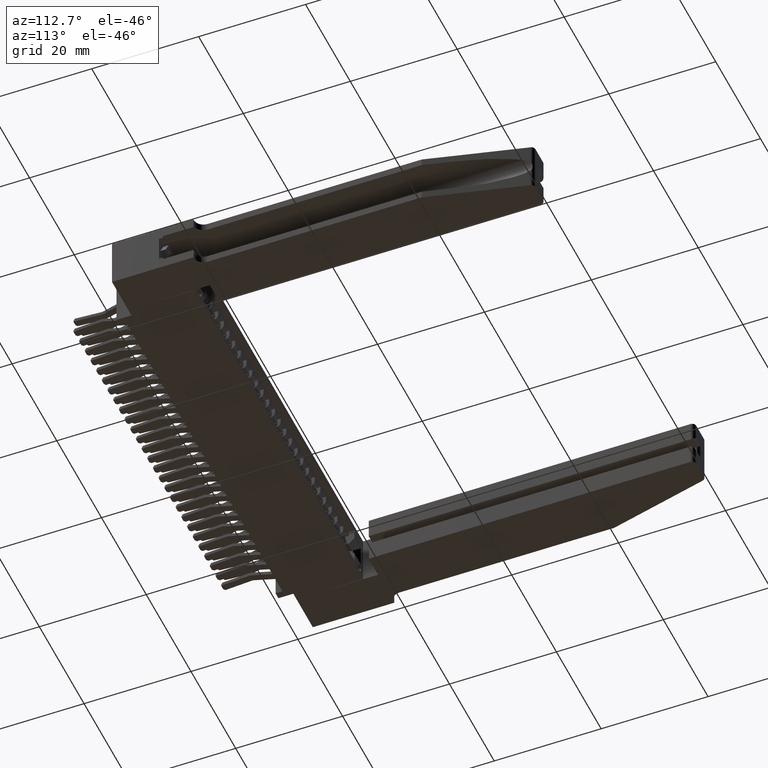
[diagram: clean part render]
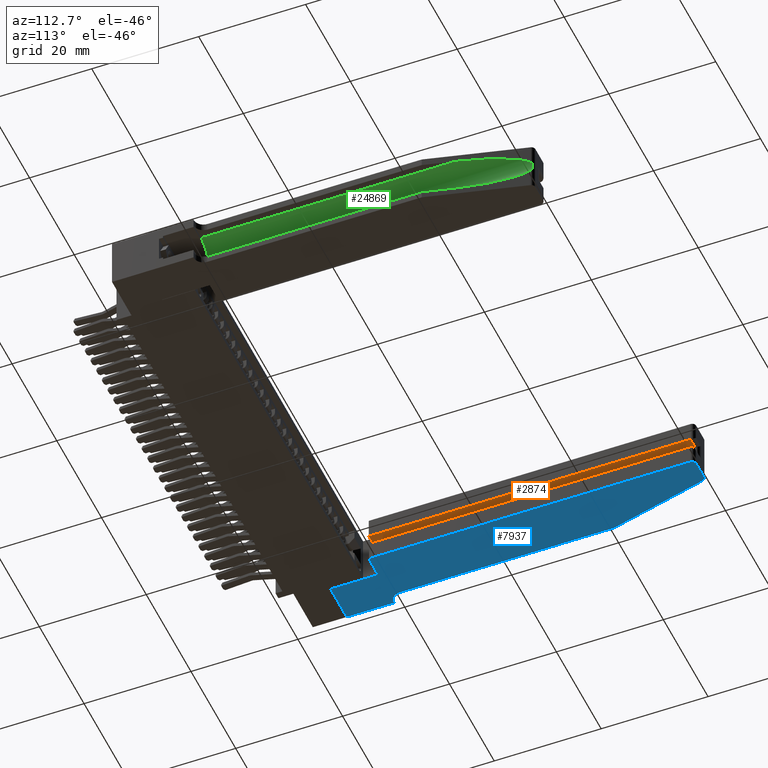
[diagram: same view with three faces highlighted in distinct colors, each labeled with its STEP entity id]
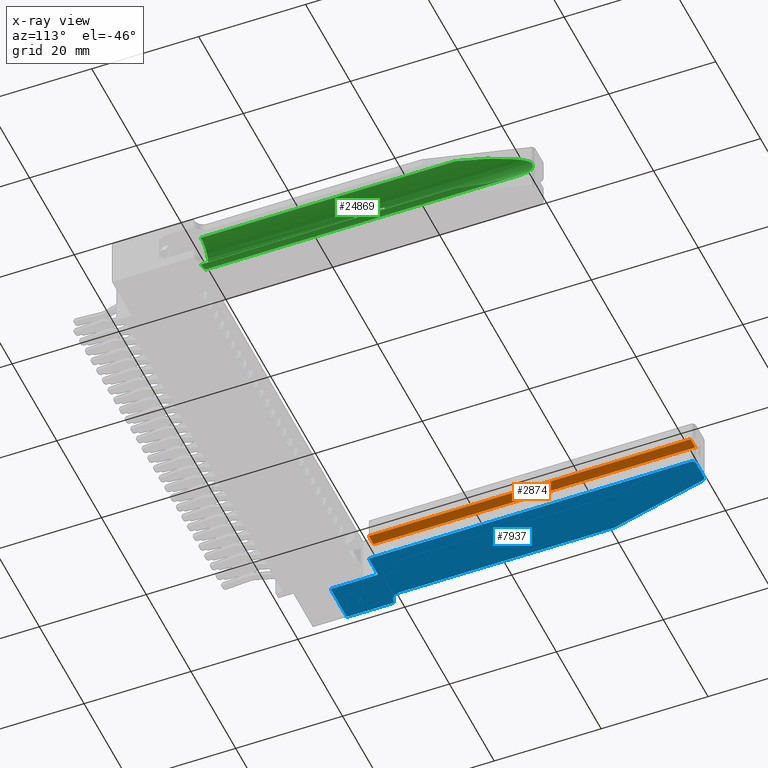
[diagram: x-ray of the same camera — body ghosted, the three highlighted faces saturated]
A machine part, auxiliary view with three faces highlighted in distinct colors.
The next image is the same camera in x-ray (body ghosted, the three faces saturated) — at least one of them is partly hidden behind the body in this view.
Their STEP definitions:

[orange] entity #2874 — the highlighted planar face has unit normal (0, 0, 1).
#2874 = ADVANCED_FACE ( 'NONE', ( #27825 ), #11401, .F. ) ;
#3910 = DIRECTION ( 'NONE',  ( 5.612000012723082900E-032, 1.000000000000000000, 5.916456789157588500E-031 ) ) ;
#6037 = VERTEX_POINT ( 'NONE', #13747 ) ;
#6263 = ORIENTED_EDGE ( 'NONE', *, *, #19585, .T. ) ;
#7759 = EDGE_LOOP ( 'NONE', ( #17178, #6263, #13450, #8389 ) ) ;
#7856 = AXIS2_PLACEMENT_3D ( 'NONE', #11435, #14809, #14745 ) ;
#8389 = ORIENTED_EDGE ( 'NONE', *, *, #15717, .T. ) ;
#9060 = LINE ( 'NONE', #13708, #14793 ) ;
#9679 = CARTESIAN_POINT ( 'NONE',  ( 0.3674999999999998300, 0.3499999999999999800, 0.2205000000000000000 ) ) ;
#10418 = LINE ( 'NONE', #28023, #22631 ) ;
#11401 = PLANE ( 'NONE',  #7856 ) ;
#11435 = CARTESIAN_POINT ( 'NONE',  ( 0.3674999999999998300, 0.2407754606326948900, 0.2204999999999999200 ) ) ;
#12927 = DIRECTION ( 'NONE',  ( 1.000000000000000000, 5.612000012723065300E-032, -4.114228906120879800E-016 ) ) ;
#13120 = VERTEX_POINT ( 'NONE', #23647 ) ;
#13450 = ORIENTED_EDGE ( 'NONE', *, *, #16270, .F. ) ;
#13708 = CARTESIAN_POINT ( 'NONE',  ( 0.4504999999999994600, 0.2407754606326948900, 0.2204999999999999700 ) ) ;
#13747 = CARTESIAN_POINT ( 'NONE',  ( 0.4504999999999994600, 2.719999999999999300, 0.2204999999999999700 ) ) ;
#14225 = EDGE_CURVE ( 'NONE', #17630, #13120, #18990, .T. ) ;
#14745 = DIRECTION ( 'NONE',  ( 1.000000000000000000, 5.612000012723065300E-032, -4.114228906120879800E-016 ) ) ;
#14793 = VECTOR ( 'NONE', #24498, 39.37007874015748100 ) ;
#14809 = DIRECTION ( 'NONE',  ( 4.114228906120879800E-016, 5.916456789157588500E-031, 1.000000000000000000 ) ) ;
#15717 = EDGE_CURVE ( 'NONE', #16813, #17630, #22632, .T. ) ;
#16270 = EDGE_CURVE ( 'NONE', #16813, #6037, #9060, .T. ) ;
#16813 = VERTEX_POINT ( 'NONE', #17674 ) ;
#16863 = VECTOR ( 'NONE', #24340, 39.37007874015748100 ) ;
#16978 = CARTESIAN_POINT ( 'NONE',  ( 0.3674999999999998300, 0.2407754606326948900, 0.2204999999999999200 ) ) ;
#17178 = ORIENTED_EDGE ( 'NONE', *, *, #14225, .T. ) ;
#17630 = VERTEX_POINT ( 'NONE', #9679 ) ;
#17674 = CARTESIAN_POINT ( 'NONE',  ( 0.4504999999999994600, 0.3499999999999999800, 0.2204999999999999700 ) ) ;
#18990 = LINE ( 'NONE', #16978, #19282 ) ;
#19282 = VECTOR ( 'NONE', #3910, 39.37007874015748100 ) ;
#19585 = EDGE_CURVE ( 'NONE', #13120, #6037, #10418, .T. ) ;
#20018 = CARTESIAN_POINT ( 'NONE',  ( 0.3674999999999998300, 0.3499999999999999800, 0.2205000000000000000 ) ) ;
#22631 = VECTOR ( 'NONE', #12927, 39.37007874015748100 ) ;
#22632 = LINE ( 'NONE', #20018, #16863 ) ;
#23647 = CARTESIAN_POINT ( 'NONE',  ( 0.3674999999999998300, 2.719999999999999300, 0.2205000000000000000 ) ) ;
#24340 = DIRECTION ( 'NONE',  ( -1.000000000000000000, -5.612000012723065300E-032, 4.114228906120879800E-016 ) ) ;
#24498 = DIRECTION ( 'NONE',  ( 5.612000012723082900E-032, 1.000000000000000000, 5.916456789157588500E-031 ) ) ;
#27825 = FACE_OUTER_BOUND ( 'NONE', #7759, .T. ) ;
#28023 = CARTESIAN_POINT ( 'NONE',  ( 0.3674999999999998300, 2.719999999999999300, 0.2205000000000000000 ) ) ;

[blue] entity #7937 — the highlighted planar face has unit normal (-0, 0, 1).
#532 = ORIENTED_EDGE ( 'NONE', *, *, #10809, .F. ) ;
#771 = LINE ( 'NONE', #16269, #17535 ) ;
#1700 = VECTOR ( 'NONE', #20472, 39.37007874015748100 ) ;
#1913 = CARTESIAN_POINT ( 'NONE',  ( 0.07550000000000033100, 0.3499999999999999800, 0.0000000000000000000 ) ) ;
#1915 = ORIENTED_EDGE ( 'NONE', *, *, #7622, .F. ) ;
#1965 = CARTESIAN_POINT ( 'NONE',  ( 0.0000000000000000000, 0.3499999999999999800, 0.0000000000000000000 ) ) ;
#2440 = LINE ( 'NONE', #15037, #24242 ) ;
#3060 = VECTOR ( 'NONE', #13003, 39.37007874015748100 ) ;
#3085 = LINE ( 'NONE', #12514, #14041 ) ;
#3381 = CARTESIAN_POINT ( 'NONE',  ( 0.4505000000000000100, 2.719999999999999300, 0.0000000000000000000 ) ) ;
#3650 = ORIENTED_EDGE ( 'NONE', *, *, #17206, .F. ) ;
#3780 = CARTESIAN_POINT ( 'NONE',  ( 0.005500000000000255600, 0.3499999999999999800, 0.0000000000000000000 ) ) ;
#4353 = VERTEX_POINT ( 'NONE', #11596 ) ;
#4933 = CARTESIAN_POINT ( 'NONE',  ( 0.4505000000000000100, 0.3499999999999999800, 0.0000000000000000000 ) ) ;
#4961 = DIRECTION ( 'NONE',  ( -5.612000012723082900E-032, -1.000000000000000000, -5.916456789157588500E-031 ) ) ;
#4964 = CARTESIAN_POINT ( 'NONE',  ( 0.005500000000000255600, 0.4199999999999999800, 0.0000000000000000000 ) ) ;
#5191 = VERTEX_POINT ( 'NONE', #25527 ) ;
#5216 = CARTESIAN_POINT ( 'NONE',  ( 0.0000000000000000000, 0.0000000000000000000, 0.0000000000000000000 ) ) ;
#5698 = EDGE_CURVE ( 'NONE', #17451, #23952, #771, .T. ) ;
#5926 = DIRECTION ( 'NONE',  ( -1.000000000000000000, -5.612000012723089400E-032, 0.0000000000000000000 ) ) ;
#6003 = VERTEX_POINT ( 'NONE', #26130 ) ;
#6233 = CARTESIAN_POINT ( 'NONE',  ( 0.07550000000000033100, 0.4199999999999999800, 0.0000000000000000000 ) ) ;
#6927 = LINE ( 'NONE', #1913, #12062 ) ;
#7175 = DIRECTION ( 'NONE',  ( 1.000000000000000000, 5.612000012723089400E-032, 0.0000000000000000000 ) ) ;
#7190 = DIRECTION ( 'NONE',  ( -0.0000000000000000000, -5.916456789157588500E-031, -1.000000000000000000 ) ) ;
#7215 = DIRECTION ( 'NONE',  ( -1.000000000000000000, 0.0000000000000000000, 0.0000000000000000000 ) ) ;
#7440 = AXIS2_PLACEMENT_3D ( 'NONE', #20210, #7190, #22366 ) ;
#7622 = EDGE_CURVE ( 'NONE', #24142, #14836, #18804, .T. ) ;
#7653 = CARTESIAN_POINT ( 'NONE',  ( 0.4205000000000000400, 2.750000000000000000, 0.0000000000000000000 ) ) ;
#7807 = EDGE_CURVE ( 'NONE', #21819, #9888, #3085, .T. ) ;
#7837 = ORIENTED_EDGE ( 'NONE', *, *, #20632, .F. ) ;
#7937 = ADVANCED_FACE ( 'NONE', ( #27832 ), #27979, .F. ) ;
#8160 = ORIENTED_EDGE ( 'NONE', *, *, #22643, .F. ) ;
#8516 = DIRECTION ( 'NONE',  ( 1.241749088029210900E-016, -1.000000000000000000, -5.916456789157588500E-031 ) ) ;
#8657 = DIRECTION ( 'NONE',  ( -3.320315557602799600E-062, 5.916456789157588500E-031, 1.000000000000000000 ) ) ;
#8778 = LINE ( 'NONE', #4933, #25343 ) ;
#8847 = CIRCLE ( 'NONE', #7440, 0.03000000000000002300 ) ;
#8945 = LINE ( 'NONE', #21656, #3060 ) ;
#9138 = CIRCLE ( 'NONE', #15645, 0.03000000000000002300 ) ;
#9145 = AXIS2_PLACEMENT_3D ( 'NONE', #1965, #8657, #23773 ) ;
#9677 = AXIS2_PLACEMENT_3D ( 'NONE', #4964, #20241, #7215 ) ;
#9888 = VERTEX_POINT ( 'NONE', #19467 ) ;
#10809 = EDGE_CURVE ( 'NONE', #6003, #21819, #24898, .T. ) ;
#10867 = ORIENTED_EDGE ( 'NONE', *, *, #19160, .F. ) ;
#11098 = CARTESIAN_POINT ( 'NONE',  ( 0.4505000000000000100, 0.3499999999999999800, 0.0000000000000000000 ) ) ;
#11422 = VERTEX_POINT ( 'NONE', #7653 ) ;
#11596 = CARTESIAN_POINT ( 'NONE',  ( 0.0000000000000000000, 0.3499999999999999800, 0.0000000000000000000 ) ) ;
#12062 = VECTOR ( 'NONE', #23727, 39.37007874015748100 ) ;
#12514 = CARTESIAN_POINT ( 'NONE',  ( 0.2864999999999998100, 0.3499999999999999800, 0.0000000000000000000 ) ) ;
#12589 = CARTESIAN_POINT ( 'NONE',  ( 0.4205000000000000400, 2.719999999999999300, 0.0000000000000000000 ) ) ;
#12631 = EDGE_LOOP ( 'NONE', ( #8160, #25407, #3650, #15278, #21040, #10867, #22395, #532, #17998, #23730, #1915, #7837 ) ) ;
#13003 = DIRECTION ( 'NONE',  ( -0.2394884713086027600, -0.9708992080078490100, -5.916456789157588500E-031 ) ) ;
#14041 = VECTOR ( 'NONE', #23404, 39.37007874015748100 ) ;
#14783 = DIRECTION ( 'NONE',  ( 1.000000000000000000, 0.0000000000000000000, 0.0000000000000000000 ) ) ;
#14836 = VERTEX_POINT ( 'NONE', #3780 ) ;
#15037 = CARTESIAN_POINT ( 'NONE',  ( 0.07550000000000033100, 1.999999999999999300, 0.0000000000000000000 ) ) ;
#15278 = ORIENTED_EDGE ( 'NONE', *, *, #18870, .T. ) ;
#15645 = AXIS2_PLACEMENT_3D ( 'NONE', #12589, #27676, #14783 ) ;
#16269 = CARTESIAN_POINT ( 'NONE',  ( 0.4505000000000000100, 0.3499999999999999800, 0.0000000000000000000 ) ) ;
#17206 = EDGE_CURVE ( 'NONE', #11422, #5191, #25565, .T. ) ;
#17257 = LINE ( 'NONE', #26603, #22354 ) ;
#17451 = VERTEX_POINT ( 'NONE', #11098 ) ;
#17535 = VECTOR ( 'NONE', #20716, 39.37007874015748100 ) ;
#17998 = ORIENTED_EDGE ( 'NONE', *, *, #18522, .F. ) ;
#18472 = VERTEX_POINT ( 'NONE', #22196 ) ;
#18522 = EDGE_CURVE ( 'NONE', #4353, #6003, #17257, .T. ) ;
#18804 = CIRCLE ( 'NONE', #9677, 0.07000000000000000700 ) ;
#18870 = EDGE_CURVE ( 'NONE', #11422, #23952, #9138, .T. ) ;
#18974 = CARTESIAN_POINT ( 'NONE',  ( 0.2605000000000001200, 2.750000000000000000, 0.0000000000000000000 ) ) ;
#19159 = VECTOR ( 'NONE', #5926, 39.37007874015748100 ) ;
#19160 = EDGE_CURVE ( 'NONE', #9888, #17451, #8778, .T. ) ;
#19467 = CARTESIAN_POINT ( 'NONE',  ( 0.2864999999999998100, 0.3499999999999999800, 0.0000000000000000000 ) ) ;
#20210 = CARTESIAN_POINT ( 'NONE',  ( 0.2839991909279190300, 2.719999999999999300, 0.0000000000000000000 ) ) ;
#20241 = DIRECTION ( 'NONE',  ( 0.0000000000000000000, -5.916456789157588500E-031, -1.000000000000000000 ) ) ;
#20472 = DIRECTION ( 'NONE',  ( 1.000000000000000000, 8.258562440595775800E-032, 0.0000000000000000000 ) ) ;
#20632 = EDGE_CURVE ( 'NONE', #18472, #24142, #2440, .T. ) ;
#20662 = EDGE_CURVE ( 'NONE', #14836, #4353, #6927, .T. ) ;
#20716 = DIRECTION ( 'NONE',  ( 5.612000012723082900E-032, 1.000000000000000000, 5.916456789157588500E-031 ) ) ;
#21040 = ORIENTED_EDGE ( 'NONE', *, *, #5698, .F. ) ;
#21656 = CARTESIAN_POINT ( 'NONE',  ( 0.07550000000000033100, 1.999999999999999300, 0.0000000000000000000 ) ) ;
#21819 = VERTEX_POINT ( 'NONE', #23114 ) ;
#22196 = CARTESIAN_POINT ( 'NONE',  ( 0.07550000000000033100, 1.999999999999999300, 0.0000000000000000000 ) ) ;
#22354 = VECTOR ( 'NONE', #4961, 39.37007874015748100 ) ;
#22366 = DIRECTION ( 'NONE',  ( 1.000000000000000000, 0.0000000000000000000, -2.101947696487224100E-045 ) ) ;
#22395 = ORIENTED_EDGE ( 'NONE', *, *, #7807, .F. ) ;
#22643 = EDGE_CURVE ( 'NONE', #25490, #18472, #8945, .T. ) ;
#23114 = CARTESIAN_POINT ( 'NONE',  ( 0.2864999999999998100, 0.0000000000000000000, 0.0000000000000000000 ) ) ;
#23404 = DIRECTION ( 'NONE',  ( 5.612000012723082900E-032, 1.000000000000000000, 5.916456789157588500E-031 ) ) ;
#23727 = DIRECTION ( 'NONE',  ( -1.000000000000000000, -5.612000012723089400E-032, 0.0000000000000000000 ) ) ;
#23730 = ORIENTED_EDGE ( 'NONE', *, *, #20662, .F. ) ;
#23773 = DIRECTION ( 'NONE',  ( 1.000000000000000000, 5.612000012723089400E-032, 0.0000000000000000000 ) ) ;
#23952 = VERTEX_POINT ( 'NONE', #3381 ) ;
#24142 = VERTEX_POINT ( 'NONE', #6233 ) ;
#24242 = VECTOR ( 'NONE', #8516, 39.37007874015748100 ) ;
#24898 = LINE ( 'NONE', #5216, #1700 ) ;
#25343 = VECTOR ( 'NONE', #7175, 39.37007874015748100 ) ;
#25407 = ORIENTED_EDGE ( 'NONE', *, *, #26616, .T. ) ;
#25490 = VERTEX_POINT ( 'NONE', #26823 ) ;
#25527 = CARTESIAN_POINT ( 'NONE',  ( 0.2839991909279190300, 2.750000000000000000, 0.0000000000000000000 ) ) ;
#25565 = LINE ( 'NONE', #18974, #19159 ) ;
#26130 = CARTESIAN_POINT ( 'NONE',  ( 0.0000000000000000000, 0.0000000000000000000, 0.0000000000000000000 ) ) ;
#26603 = CARTESIAN_POINT ( 'NONE',  ( 0.0000000000000000000, 0.0000000000000000000, 0.0000000000000000000 ) ) ;
#26616 = EDGE_CURVE ( 'NONE', #25490, #5191, #8847, .T. ) ;
#26823 = CARTESIAN_POINT ( 'NONE',  ( 0.2548722146876835600, 2.727184654139257700, 0.0000000000000000000 ) ) ;
#27676 = DIRECTION ( 'NONE',  ( -0.0000000000000000000, -5.916456789157588500E-031, -1.000000000000000000 ) ) ;
#27832 = FACE_OUTER_BOUND ( 'NONE', #12631, .T. ) ;
#27979 = PLANE ( 'NONE',  #9145 ) ;

[green] entity #24869 — the highlighted cylindrical surface (edge-blend (fillet) strip) has radius 3.3083 mm, axis along (0, -1, 0).
#18 = B_SPLINE_CURVE_WITH_KNOTS ( 'NONE', 3,
 ( #1997, #12912, #21650, #8686, #23803, #10849, #25966, #12998 ),
 .UNSPECIFIED., .F., .F.,
 ( 4, 2, 2, 4 ),
 ( 0.0000000000000000000, 0.0001332753836058733600, 0.0002665507672117467200, 0.0005331015344234934300 ),
 .UNSPECIFIED. ) ;
#166 = CARTESIAN_POINT ( 'NONE',  ( 0.2572417074261726900, 1.516056269377321000, 0.2150266897725741900 ) ) ;
#179 = AXIS2_PLACEMENT_3D ( 'NONE', #22921, #9965, #25094 ) ;
#183 = CARTESIAN_POINT ( 'NONE',  ( 0.1304999999999996200, 3.118579452085978000, 0.1850000000000000000 ) ) ;
#188 = CARTESIAN_POINT ( 'NONE',  ( 0.2577610061578158300, 1.438997083721038800, 0.2127903378218702600 ) ) ;
#205 = DIRECTION ( 'NONE',  ( 5.612000012723082900E-032, 1.000000000000000000, 5.916456789157588500E-031 ) ) ;
#208 = DIRECTION ( 'NONE',  ( -5.612000012723090500E-032, -1.000000000000000000, -5.916456789157590300E-031 ) ) ;
#243 = EDGE_CURVE ( 'NONE', #18528, #7471, #20753, .T. ) ;
#309 = ORIENTED_EDGE ( 'NONE', *, *, #21508, .F. ) ;
#321 = ORIENTED_EDGE ( 'NONE', *, *, #17495, .F. ) ;
#349 = ORIENTED_EDGE ( 'NONE', *, *, #7784, .F. ) ;
#435 = EDGE_CURVE ( 'NONE', #18528, #15126, #11061, .T. ) ;
#514 = CARTESIAN_POINT ( 'NONE',  ( 0.2572650028688677800, 1.566237742105492300, 0.1550717742952604000 ) ) ;
#531 = CARTESIAN_POINT ( 'NONE',  ( 0.2604082237067015200, 1.432693304204303100, 0.1755474817377458100 ) ) ;
#613 = CARTESIAN_POINT ( 'NONE',  ( 0.2607495255138105900, 1.542438480915782500, 0.1853515727904365700 ) ) ;
#780 =( BOUNDED_CURVE ( )  B_SPLINE_CURVE ( 3, ( #2673, #24468, #531, #15877 ),
 .UNSPECIFIED., .F., .F. ) 
 B_SPLINE_CURVE_WITH_KNOTS ( ( 4, 4 ),
 ( 1.487939716100531900, 1.503116450270790500 ),
 .UNSPECIFIED. ) 
 CURVE ( )  GEOMETRIC_REPRESENTATION_ITEM ( )  RATIONAL_B_SPLINE_CURVE ( ( 1.000000000000000000, 0.9999808056537669000, 0.9999808056537669000, 1.000000000000000000 ) ) 
 REPRESENTATION_ITEM ( '' )  );
#849 = CARTESIAN_POINT ( 'NONE',  ( 0.1304999999999996200, 1.647053865531167300, 0.1850000000000000000 ) ) ;
#863 = CARTESIAN_POINT ( 'NONE',  ( 0.2606336593418024400, 1.470576365621471600, 0.1911457352603607700 ) ) ;
#904 = EDGE_CURVE ( 'NONE', #1264, #24598, #11014, .T. ) ;
#921 = CARTESIAN_POINT ( 'NONE',  ( 0.2578854245038477700, 2.734861984818300200, 0.1576467210914298500 ) ) ;
#932 = CIRCLE ( 'NONE', #12553, 0.1302500000000000000 ) ;
#946 = B_SPLINE_CURVE_WITH_KNOTS ( 'NONE', 3,
 ( #15005, #17173, #4103, #19368, #6305, #21536, #8576, #23693, #10733, #25852, #12896, #27993, #15104, #1978 ),
 .UNSPECIFIED., .F., .F.,
 ( 4, 2, 2, 2, 2, 2, 4 ),
 ( 7.152448122690996000E-018, 0.0001086335749075641300, 0.0002172671498151211000, 0.0003259007247226780900, 0.0004345342996302350500, 0.0006518014494453510800, 0.0008690685992604671700 ),
 .UNSPECIFIED. ) ;
#984 = FACE_BOUND ( 'NONE', #20425, .T. ) ;
#1248 = CARTESIAN_POINT ( 'NONE',  ( 0.2593770251907650500, 1.474820832027519100, 0.2040910098119249900 ) ) ;
#1264 = VERTEX_POINT ( 'NONE', #28052 ) ;
#1281 = DIRECTION ( 'NONE',  ( -5.612000012723082900E-032, -1.000000000000000000, -5.916456789157588500E-031 ) ) ;
#1291 = CARTESIAN_POINT ( 'NONE',  ( 0.2548722146876841200, 2.727184654139257700, 0.1463138950825917900 ) ) ;
#1386 = ORIENTED_EDGE ( 'NONE', *, *, #3737, .F. ) ;
#1424 = AXIS2_PLACEMENT_3D ( 'NONE', #3437, #18706, #5651 ) ;
#1556 = EDGE_CURVE ( 'NONE', #12541, #13068, #2392, .T. ) ;
#1634 = CARTESIAN_POINT ( 'NONE',  ( 0.2572543420685634000, 1.539878384761936400, 0.1550266907605160300 ) ) ;
#1729 = CARTESIAN_POINT ( 'NONE',  ( 0.1305000000000001400, 3.118579452085978000, 0.3152500000000000900 ) ) ;
#1788 = EDGE_CURVE ( 'NONE', #15168, #12188, #9457, .T. ) ;
#1812 = B_SPLINE_CURVE_WITH_KNOTS ( 'NONE', 3,
 ( #6315, #15115, #17275, #4209, #19471, #6414, #21641, #8679 ),
 .UNSPECIFIED., .F., .F.,
 ( 4, 2, 2, 4 ),
 ( 0.0000000000000000000, 0.0003467307017607498900, 0.0005200960526411203600, 0.0006934614035214908900 ),
 .UNSPECIFIED. ) ;
#1870 = CARTESIAN_POINT ( 'NONE',  ( 0.2604527177282015000, 1.435515403992705800, 0.1762049073311092500 ) ) ;
#1872 = CIRCLE ( 'NONE', #19082, 0.1302500000000000000 ) ;
#1942 = CARTESIAN_POINT ( 'NONE',  ( 0.2583535020606468900, 1.551825500146551700, 0.2098705550969030600 ) ) ;
#1969 = CARTESIAN_POINT ( 'NONE',  ( 0.2585535126471000300, 1.452342327069629000, 0.1611806717403911100 ) ) ;
#1978 = CARTESIAN_POINT ( 'NONE',  ( 0.2607490100387212500, 1.470900019377321200, 0.1855078227377954000 ) ) ;
#1997 = CARTESIAN_POINT ( 'NONE',  ( 0.2585435214692407000, 1.452125980915782500, 0.2088729786527802300 ) ) ;
#2053 = ORIENTED_EDGE ( 'NONE', *, *, #904, .F. ) ;
#2077 = CARTESIAN_POINT ( 'NONE',  ( 0.2607491456314732800, 1.479361557838859700, 0.1854717650593617800 ) ) ;
#2088 = CARTESIAN_POINT ( 'NONE',  ( 0.2572417074261726900, 1.516056269377321000, 0.2150266897725741900 ) ) ;
#2110 = CARTESIAN_POINT ( 'NONE',  ( 0.2570570028013188200, 1.451717327069628600, 0.2157959013822774700 ) ) ;
#2120 = EDGE_CURVE ( 'NONE', #11370, #12541, #12359, .T. ) ;
#2176 = CARTESIAN_POINT ( 'NONE',  ( 0.2578800906641983700, 1.555179994274563700, 0.2121939212779543600 ) ) ;
#2187 =( BOUNDED_CURVE ( )  B_SPLINE_CURVE ( 3, ( #1291, #14429, #18806, #5753 ),
 .UNSPECIFIED., .F., .F. ) 
 B_SPLINE_CURVE_WITH_KNOTS ( ( 4, 4 ),
 ( 3.443156915742574300, 4.712388980384689700 ),
 .UNSPECIFIED. ) 
 CURVE ( )  GEOMETRIC_REPRESENTATION_ITEM ( )  RATIONAL_B_SPLINE_CURVE ( ( 1.000000000000000000, 0.8701995987432802300, 0.8701995987432802300, 1.000000000000000000 ) ) 
 REPRESENTATION_ITEM ( '' )  );
#2392 = CIRCLE ( 'NONE', #5586, 0.1302500000000000000 ) ;
#2428 = CARTESIAN_POINT ( 'NONE',  ( 0.2579652968106256300, 1.554461636160303200, 0.2117932007313176900 ) ) ;
#2446 = CARTESIAN_POINT ( 'NONE',  ( 0.2571366226381652800, 1.446413440213098800, 0.2154763567918473200 ) ) ;
#2482 = CARTESIAN_POINT ( 'NONE',  ( 0.2572543420685634000, 1.530900019377321000, 0.1550266907605160100 ) ) ;
#2548 = B_SPLINE_CURVE_WITH_KNOTS ( 'NONE', 3,
 ( #20414, #3043, #20512, #7514, #22667, #9710, #24837, #11879, #26971, #14058, #921, #16248, #3153, #18422 ),
 .UNSPECIFIED., .F., .F.,
 ( 4, 2, 2, 2, 2, 2, 4 ),
 ( 1.939479807224432100E-018, 0.0002671599166263931600, 0.0005343198332527843800, 0.001068639666505576300, 0.001602959499758368300, 0.001870119416384770600, 0.002137279333011171300 ),
 .UNSPECIFIED. ) ;
#2621 = VERTEX_POINT ( 'NONE', #18509 ) ;
#2673 = CARTESIAN_POINT ( 'NONE',  ( 0.2603042761395829000, 1.427053865531167300, 0.1742337380730787600 ) ) ;
#2735 = EDGE_CURVE ( 'NONE', #12188, #22119, #14033, .T. ) ;
#3029 = VERTEX_POINT ( 'NONE', #2110 ) ;
#3043 = CARTESIAN_POINT ( 'NONE',  ( 0.2555509601150309800, 2.729936324790665400, 0.2215040017517220000 ) ) ;
#3079 = DIRECTION ( 'NONE',  ( 0.0000000000000000000, 0.0000000000000000000, 1.000000000000000000 ) ) ;
#3092 = CARTESIAN_POINT ( 'NONE',  ( 0.2599784890066399500, 1.468395021612113500, 0.1993480491476894400 ) ) ;
#3153 = CARTESIAN_POINT ( 'NONE',  ( 0.2555500627181149200, 2.729932686695059300, 0.1484931132009920400 ) ) ;
#3210 = VECTOR ( 'NONE', #20304, 39.37007874015748100 ) ;
#3212 = DIRECTION ( 'NONE',  ( 0.0000000000000000000, 0.0000000000000000000, -1.000000000000000000 ) ) ;
#3437 = CARTESIAN_POINT ( 'NONE',  ( 0.1304999999999996200, 1.604746173223475100, 0.1850000000000000000 ) ) ;
#3491 = CARTESIAN_POINT ( 'NONE',  ( 0.2605394411282578300, 1.478893402734939000, 0.1932674933633179700 ) ) ;
#3493 = CARTESIAN_POINT ( 'NONE',  ( 0.2619407708686990500, 1.490559323904030700, 0.1748451630708727800 ) ) ;
#3518 = VERTEX_POINT ( 'NONE', #11256 ) ;
#3719 = CARTESIAN_POINT ( 'NONE',  ( 0.2573363970934428600, 1.563177313346149500, 0.2146241602810002600 ) ) ;
#3737 = EDGE_CURVE ( 'NONE', #21240, #6318, #932, .T. ) ;
#3746 = CARTESIAN_POINT ( 'NONE',  ( 0.2607491456314732800, 1.479361557838859700, 0.1854717650593617800 ) ) ;
#3815 = LINE ( 'NONE', #17312, #14755 ) ;
#3826 = VECTOR ( 'NONE', #27734, 39.37007874015748100 ) ;
#3940 = VECTOR ( 'NONE', #14772, 39.37007874015748100 ) ;
#4005 = AXIS2_PLACEMENT_3D ( 'NONE', #13126, #16280, #15340 ) ;
#4103 = CARTESIAN_POINT ( 'NONE',  ( 0.2585803337939818800, 1.455224327025084200, 0.1613228014347897500 ) ) ;
#4209 = CARTESIAN_POINT ( 'NONE',  ( 0.2598003144887048300, 1.545165969324254800, 0.2008439497357294400 ) ) ;
#4212 = CARTESIAN_POINT ( 'NONE',  ( 0.2548722146876835600, 2.727184654139257700, 0.2236861049174081500 ) ) ;
#4296 = CARTESIAN_POINT ( 'NONE',  ( 0.2572543420685634000, 1.539878384761936400, 0.1550266907605160300 ) ) ;
#4301 = VERTEX_POINT ( 'NONE', #13569 ) ;
#4506 = CARTESIAN_POINT ( 'NONE',  ( 0.2572417074261726900, 1.506513000146551900, 0.2150266897725741900 ) ) ;
#4645 = CARTESIAN_POINT ( 'NONE',  ( 0.2570570028013188200, 1.451717327069628600, 0.2157959013822774700 ) ) ;
#4651 = B_SPLINE_CURVE_WITH_KNOTS ( 'NONE', 3,
 ( #14519, #12428, #16800, #3719, #18982, #5934, #21160, #8189, #23316, #10352 ),
 .UNSPECIFIED., .F., .F.,
 ( 4, 3, 3, 4 ),
 ( 0.0000000000000000000, 6.777949217902839800E-005, 0.0001354456447953192300, 0.0002705498935481809000 ),
 .UNSPECIFIED. ) ;
#4680 = CARTESIAN_POINT ( 'NONE',  ( 0.2586913724347485500, 1.528652825417774900, 0.1611037587660234800 ) ) ;
#4689 = CARTESIAN_POINT ( 'NONE',  ( 0.2596884111614961000, 1.496196006525611700, 0.1672683127315806000 ) ) ;
#4694 = ORIENTED_EDGE ( 'NONE', *, *, #20170, .F. ) ;
#4740 = CARTESIAN_POINT ( 'NONE',  ( 0.2575765261260035700, 1.440297755577238000, 0.1564088741833528600 ) ) ;
#4757 = CARTESIAN_POINT ( 'NONE',  ( 0.2572543420685634000, 1.482690884761936400, 0.1550266907605160100 ) ) ;
#4795 = CARTESIAN_POINT ( 'NONE',  ( 0.2619364824541359200, 1.498644958889686900, 0.1952101929315093700 ) ) ;
#4849 = ORIENTED_EDGE ( 'NONE', *, *, #19357, .F. ) ;
#4883 = ORIENTED_EDGE ( 'NONE', *, *, #24247, .F. ) ;
#4955 = CARTESIAN_POINT ( 'NONE',  ( 0.2573502802942921300, 1.562313348136574700, 0.1554084273221811900 ) ) ;
#5213 = VECTOR ( 'NONE', #25195, 39.37007874015748100 ) ;
#5297 = EDGE_CURVE ( 'NONE', #2621, #3518, #7340, .T. ) ;
#5298 = CARTESIAN_POINT ( 'NONE',  ( 0.2590660260575156600, 1.462989393950458800, 0.2059146511071821000 ) ) ;
#5396 = VECTOR ( 'NONE', #1281, 39.37007874015748100 ) ;
#5503 = CARTESIAN_POINT ( 'NONE',  ( 0.2586942127353972800, 1.638592327069629200, 0.1619499171118249900 ) ) ;
#5570 = CARTESIAN_POINT ( 'NONE',  ( 0.2572417074261726900, 1.506513000146551900, 0.2150266897725741900 ) ) ;
#5586 = AXIS2_PLACEMENT_3D ( 'NONE', #21983, #208, #3212 ) ;
#5603 = CARTESIAN_POINT ( 'NONE',  ( 0.2580590614083185200, 1.553781599999012300, 0.2113391031098014200 ) ) ;
#5651 = DIRECTION ( 'NONE',  ( 0.0000000000000000000, 0.0000000000000000000, -1.000000000000000000 ) ) ;
#5705 = CARTESIAN_POINT ( 'NONE',  ( 0.2607491456314732800, 1.479361557838859700, 0.1854717650593617800 ) ) ;
#5753 = CARTESIAN_POINT ( 'NONE',  ( 0.1305000000000001400, 2.222972972972972400, 0.05475000000000000700 ) ) ;
#5780 = CARTESIAN_POINT ( 'NONE',  ( 0.2604527177282015000, 1.435515403992705800, 0.1762049073311092500 ) ) ;
#5795 = ORIENTED_EDGE ( 'NONE', *, *, #6780, .F. ) ;
#5893 = CARTESIAN_POINT ( 'NONE',  ( 0.2572543420685634000, 1.591669250146551700, 0.1550266907605159000 ) ) ;
#5910 = B_SPLINE_CURVE_WITH_KNOTS ( 'NONE', 3,
 ( #21986, #6781, #11199, #26305, #13355, #188, #15558, #2446, #17737, #4645 ),
 .UNSPECIFIED., .F., .F.,
 ( 4, 2, 2, 2, 4 ),
 ( 0.0000000000000000000, 0.0001977663270666498200, 0.0003955326541332996400, 0.0005932989811999494400, 0.0007910653082665992900 ),
 .UNSPECIFIED. ) ;
#5934 = CARTESIAN_POINT ( 'NONE',  ( 0.2572929425920785200, 1.564945494846582900, 0.2148096636430886800 ) ) ;
#6203 = EDGE_CURVE ( 'NONE', #3518, #3029, #5910, .T. ) ;
#6305 = CARTESIAN_POINT ( 'NONE',  ( 0.2587918443268335000, 1.459366267707223700, 0.1624899309691543400 ) ) ;
#6315 = CARTESIAN_POINT ( 'NONE',  ( 0.2607495255138105900, 1.542438480915782500, 0.1853515727904365700 ) ) ;
#6318 = VERTEX_POINT ( 'NONE', #11581 ) ;
#6414 = CARTESIAN_POINT ( 'NONE',  ( 0.2589428118309348700, 1.548598720378441900, 0.2067076933361188000 ) ) ;
#6780 = EDGE_CURVE ( 'NONE', #25134, #17288, #3815, .T. ) ;
#6781 = CARTESIAN_POINT ( 'NONE',  ( 0.2598047153753303400, 1.429358699031119600, 0.2008655726476941700 ) ) ;
#6802 = EDGE_LOOP ( 'NONE', ( #10701, #4849, #19541, #7288, #12072, #23569, #4694, #6912, #12692, #321 ) ) ;
#6833 = DIRECTION ( 'NONE',  ( -5.612000012723082900E-032, -1.000000000000000000, -5.916456789157588500E-031 ) ) ;
#6852 = FACE_BOUND ( 'NONE', #6802, .T. ) ;
#6912 = ORIENTED_EDGE ( 'NONE', *, *, #14299, .F. ) ;
#6919 = CARTESIAN_POINT ( 'NONE',  ( 0.2602403128118754300, 1.524073096300398100, 0.1734885391249854100 ) ) ;
#6924 = CARTESIAN_POINT ( 'NONE',  ( 0.2586913724347485500, 1.493916444106097900, 0.1611037587660235600 ) ) ;
#6977 = CARTESIAN_POINT ( 'NONE',  ( 0.2586284817253136600, 1.433352707383952700, 0.1615112780061712100 ) ) ;
#7201 = CARTESIAN_POINT ( 'NONE',  ( 0.2579410658512162300, 1.554906496887583000, 0.1580709906901196500 ) ) ;
#7223 = ORIENTED_EDGE ( 'NONE', *, *, #15797, .F. ) ;
#7288 = ORIENTED_EDGE ( 'NONE', *, *, #5297, .F. ) ;
#7340 =( BOUNDED_CURVE ( )  B_SPLINE_CURVE ( 3, ( #10762, #25882, #12923, #28020 ),
 .UNSPECIFIED., .F., .F. ) 
 B_SPLINE_CURVE_WITH_KNOTS ( ( 4, 4 ),
 ( 4.801011373120273300, 4.815009436136767500 ),
 .UNSPECIFIED. ) 
 CURVE ( )  GEOMETRIC_REPRESENTATION_ITEM ( )  RATIONAL_B_SPLINE_CURVE ( ( 1.000000000000000000, 0.9999836712526395400, 0.9999836712526395400, 1.000000000000000000 ) ) 
 REPRESENTATION_ITEM ( '' )  );
#7471 = VERTEX_POINT ( 'NONE', #4212 ) ;
#7514 = CARTESIAN_POINT ( 'NONE',  ( 0.2578744793662743300, 2.734842503019049500, 0.2124027854212105800 ) ) ;
#7554 = CARTESIAN_POINT ( 'NONE',  ( 0.2585512709625212800, 1.454992119728794300, 0.2088314139857253000 ) ) ;
#7686 = ORIENTED_EDGE ( 'NONE', *, *, #20577, .F. ) ;
#7729 = VERTEX_POINT ( 'NONE', #22577 ) ;
#7771 = VECTOR ( 'NONE', #23480, 39.37007874015748100 ) ;
#7784 = EDGE_CURVE ( 'NONE', #24598, #23350, #4651, .T. ) ;
#7862 = CARTESIAN_POINT ( 'NONE',  ( 0.2570748711173551600, 1.455608746652170500, 0.2157224708145342200 ) ) ;
#8157 = EDGE_CURVE ( 'NONE', #23350, #22557, #17400, .T. ) ;
#8189 = CARTESIAN_POINT ( 'NONE',  ( 0.2572503837965710600, 1.567602195655746900, 0.2149902983010856800 ) ) ;
#8217 = CARTESIAN_POINT ( 'NONE',  ( 0.2599380758232267000, 1.476658931932487200, 0.1699869735472057900 ) ) ;
#8325 = CARTESIAN_POINT ( 'NONE',  ( 0.2606672399140614900, 1.638592327069629200, 0.1896424296607650000 ) ) ;
#8355 = CARTESIAN_POINT ( 'NONE',  ( 0.2572417074261726900, 3.118579452085978000, 0.2150266897725741900 ) ) ;
#8405 = EDGE_LOOP ( 'NONE', ( #17119, #15908, #10064, #5795, #4883, #10747, #23924, #13773 ) ) ;
#8544 = CARTESIAN_POINT ( 'NONE',  ( 0.2574436077952382800, 1.560551461685013400, 0.2141613261003103600 ) ) ;
#8566 = CARTESIAN_POINT ( 'NONE',  ( 0.2601363414390953600, 1.436564356004346200, 0.1722355153080639100 ) ) ;
#8576 = CARTESIAN_POINT ( 'NONE',  ( 0.2591395764588023700, 1.463147546906326900, 0.1645580883928554900 ) ) ;
#8621 = EDGE_CURVE ( 'NONE', #19485, #15219, #12949, .T. ) ;
#8670 = LINE ( 'NONE', #11252, #13024 ) ;
#8679 = CARTESIAN_POINT ( 'NONE',  ( 0.2583535020606468900, 1.551825500146551700, 0.2098705550969030600 ) ) ;
#8686 = CARTESIAN_POINT ( 'NONE',  ( 0.2587773702111549900, 1.445252431416221400, 0.2075894126825149900 ) ) ;
#8762 = DIRECTION ( 'NONE',  ( -5.612000012723082900E-032, -1.000000000000000000, -5.916456789157588500E-031 ) ) ;
#8822 = LINE ( 'NONE', #15306, #19660 ) ;
#9031 = CARTESIAN_POINT ( 'NONE',  ( 0.2570699709939360300, 1.451549057838859700, 0.1542574408580841300 ) ) ;
#9070 = ORIENTED_EDGE ( 'NONE', *, *, #26297, .T. ) ;
#9224 = CARTESIAN_POINT ( 'NONE',  ( 0.2597582560299194800, 1.428748831027393900, 0.1687603062686562600 ) ) ;
#9230 = CARTESIAN_POINT ( 'NONE',  ( 0.2586942127353972800, 1.603207711685013900, 0.1619499171118249900 ) ) ;
#9240 = ORIENTED_EDGE ( 'NONE', *, *, #23577, .F. ) ;
#9321 = DIRECTION ( 'NONE',  ( 5.612000012723082900E-032, 1.000000000000000000, 5.916456789157588500E-031 ) ) ;
#9421 = CARTESIAN_POINT ( 'NONE',  ( 0.2586618917472637800, 1.550267008683503800, 0.1617193645803701500 ) ) ;
#9457 =( BOUNDED_CURVE ( )  B_SPLINE_CURVE ( 3, ( #4757, #3493, #4795, #4506 ),
 .UNSPECIFIED., .F., .F. ) 
 B_SPLINE_CURVE_WITH_KNOTS ( ( 4, 4 ),
 ( 1.338490169268823800, 1.803316132973651100 ),
 .UNSPECIFIED. ) 
 CURVE ( )  GEOMETRIC_REPRESENTATION_ITEM ( )  RATIONAL_B_SPLINE_CURVE ( ( 1.000000000000000000, 0.9820756368908562000, 0.9820756368908562000, 1.000000000000000000 ) ) 
 REPRESENTATION_ITEM ( '' )  );
#9486 = ORIENTED_EDGE ( 'NONE', *, *, #24105, .F. ) ;
#9501 = CARTESIAN_POINT ( 'NONE',  ( 0.2572543420685634000, 3.118579452085978000, 0.1550266907605160100 ) ) ;
#9650 = CARTESIAN_POINT ( 'NONE',  ( 0.2607490100387212500, 1.470900019377321200, 0.1855078227377954000 ) ) ;
#9710 = CARTESIAN_POINT ( 'NONE',  ( 0.2601832251689557600, 2.738348025830905200, 0.1989473821119744100 ) ) ;
#9851 = CARTESIAN_POINT ( 'NONE',  ( 0.2575391381951899800, 1.558952989881099200, 0.2137435639440560000 ) ) ;
#9965 = DIRECTION ( 'NONE',  ( -5.612000012723090500E-032, -1.000000000000000000, -5.916456789157590300E-031 ) ) ;
#9966 = B_SPLINE_CURVE_WITH_KNOTS ( 'NONE', 3,
 ( #9650, #22619, #863, #16192, #3092, #18364, #5298, #20551, #7554, #22707 ),
 .UNSPECIFIED., .F., .F.,
 ( 4, 2, 2, 2, 4 ),
 ( 0.0000000000000000000, 0.0002135058638074939700, 0.0004270117276149879400, 0.0006405175914224819000, 0.0008540234552299758700 ),
 .UNSPECIFIED. ) ;
#9985 = CIRCLE ( 'NONE', #1424, 0.1302500000000000000 ) ;
#10064 = ORIENTED_EDGE ( 'NONE', *, *, #15011, .F. ) ;
#10125 = CARTESIAN_POINT ( 'NONE',  ( 0.2572417074261726900, 3.118579452085978000, 0.2150266897725741900 ) ) ;
#10160 = CARTESIAN_POINT ( 'NONE',  ( 0.2607495255138105900, 1.542438480915782500, 0.1853515727904365700 ) ) ;
#10207 = VERTEX_POINT ( 'NONE', #27140 ) ;
#10233 = CARTESIAN_POINT ( 'NONE',  ( 0.2570699709939360300, 1.451549057838859700, 0.1542574408580841300 ) ) ;
#10235 = CIRCLE ( 'NONE', #4005, 0.1302499999999999500 ) ;
#10296 =( BOUNDED_CURVE ( )  B_SPLINE_CURVE ( 3, ( #17775, #4689, #6924, #22120 ),
 .UNSPECIFIED., .F., .F. ) 
 B_SPLINE_CURVE_WITH_KNOTS ( ( 4, 4 ),
 ( 4.800987933105060900, 4.944695137910761300 ),
 .UNSPECIFIED. ) 
 CURVE ( )  GEOMETRIC_REPRESENTATION_ITEM ( )  RATIONAL_B_SPLINE_CURVE ( ( 1.000000000000000000, 0.9982797602562518700, 0.9982797602562518700, 1.000000000000000000 ) ) 
 REPRESENTATION_ITEM ( '' )  );
#10339 = CARTESIAN_POINT ( 'NONE',  ( 0.2373009454527215700, 2.655949778862385400, 0.2801760946512248400 ) ) ;
#10352 = CARTESIAN_POINT ( 'NONE',  ( 0.2572417074261726900, 1.571152423223475000, 0.2150266897725740800 ) ) ;
#10360 = CARTESIAN_POINT ( 'NONE',  ( 0.2572417074261726900, 1.647053865531167300, 0.2150266897725741900 ) ) ;
#10381 = CARTESIAN_POINT ( 'NONE',  ( 0.2583841953859392100, 1.470146608628777300, 0.1600857372843967900 ) ) ;
#10461 = CARTESIAN_POINT ( 'NONE',  ( 0.1896596859580421400, 2.462809537667739200, 0.3152499999999999200 ) ) ;
#10565 = DIRECTION ( 'NONE',  ( 5.612000012723090500E-032, 1.000000000000000000, 5.916456789157590300E-031 ) ) ;
#10616 = CARTESIAN_POINT ( 'NONE',  ( 0.2602403128118743200, 1.498496173223474900, 0.1734885391249854100 ) ) ;
#10663 = CARTESIAN_POINT ( 'NONE',  ( 0.2548722146876841200, 2.727184654139257700, 0.1463138950825917900 ) ) ;
#10674 = VERTEX_POINT ( 'NONE', #19998 ) ;
#10701 = ORIENTED_EDGE ( 'NONE', *, *, #24066, .F. ) ;
#10725 = CARTESIAN_POINT ( 'NONE',  ( 0.2594840307723603200, 1.439526508707427600, 0.1668277616147117400 ) ) ;
#10733 = CARTESIAN_POINT ( 'NONE',  ( 0.2595890747523878500, 1.466237011112578000, 0.1676056634721228300 ) ) ;
#10747 = ORIENTED_EDGE ( 'NONE', *, *, #27778, .F. ) ;
#10762 = CARTESIAN_POINT ( 'NONE',  ( 0.2602376508248716000, 1.437053865531167100, 0.1965414235882593800 ) ) ;
#10814 = CIRCLE ( 'NONE', #179, 0.1302500000000000000 ) ;
#10849 = CARTESIAN_POINT ( 'NONE',  ( 0.2594881256151503300, 1.439643616254357300, 0.2032413305069410100 ) ) ;
#11014 = B_SPLINE_CURVE_WITH_KNOTS ( 'NONE', 3,
 ( #1942, #27796, #15353, #5603, #2428, #2176, #19109, #19023, #25764, #25728, #9851, #13849, #8544 ),
 .UNSPECIFIED., .F., .F.,
 ( 4, 3, 3, 3, 4 ),
 ( 0.0000000000000000000, 6.257714236621031300E-005, 0.0001253643560990561800, 0.0001875701188059408000, 0.0002505588628256892700 ),
 .UNSPECIFIED. ) ;
#11025 = ORIENTED_EDGE ( 'NONE', *, *, #1556, .F. ) ;
#11061 = LINE ( 'NONE', #1729, #5213 ) ;
#11172 = B_SPLINE_CURVE_WITH_KNOTS ( 'NONE', 3,
 ( #22998, #7862, #12206, #27287, #14386, #1248, #16569, #3491, #18758, #5705 ),
 .UNSPECIFIED., .F., .F.,
 ( 4, 2, 2, 2, 4 ),
 ( 6.992893892674702500E-018, 0.0002932632728899683700, 0.0005865265457799296900, 0.0008797898186698910600, 0.001173053091559852400 ),
 .UNSPECIFIED. ) ;
#11194 = DIRECTION ( 'NONE',  ( 0.0000000000000000000, 0.0000000000000000000, -1.000000000000000000 ) ) ;
#11199 = CARTESIAN_POINT ( 'NONE',  ( 0.2594803879921022100, 1.430301439167069600, 0.2032755149709676600 ) ) ;
#11252 = CARTESIAN_POINT ( 'NONE',  ( 0.2572543420685634000, 3.118579452085978000, 0.1550266907605160100 ) ) ;
#11256 = CARTESIAN_POINT ( 'NONE',  ( 0.2600633879619402800, 1.428592327069629000, 0.1983563093638785700 ) ) ;
#11309 = CYLINDRICAL_SURFACE ( 'NONE', #13014, 0.1302500000000000000 ) ;
#11312 = DIRECTION ( 'NONE',  ( -5.612000012723090500E-032, -1.000000000000000000, -5.916456789157590300E-031 ) ) ;
#11370 = VERTEX_POINT ( 'NONE', #26917 ) ;
#11381 = CARTESIAN_POINT ( 'NONE',  ( 0.2603042761395829000, 1.427053865531167300, 0.1742337380730787600 ) ) ;
#11536 = VERTEX_POINT ( 'NONE', #16765 ) ;
#11581 = CARTESIAN_POINT ( 'NONE',  ( 0.2572543420685634000, 1.647053865531167300, 0.1550266907605160100 ) ) ;
#11590 = CARTESIAN_POINT ( 'NONE',  ( 0.2599319460464000800, 1.544953606093890200, 0.1699369676972110100 ) ) ;
#11650 = VECTOR ( 'NONE', #9321, 39.37007874015748100 ) ;
#11837 = CARTESIAN_POINT ( 'NONE',  ( 0.1305000000000001400, 2.222972972972972400, 0.05475000000000000700 ) ) ;
#11879 = CARTESIAN_POINT ( 'NONE',  ( 0.2607507272391346700, 2.738960720910291500, 0.1779974289772156800 ) ) ;
#11928 = ORIENTED_EDGE ( 'NONE', *, *, #12025, .T. ) ;
#11948 = CARTESIAN_POINT ( 'NONE',  ( 0.1305000000000001400, 0.3499999999999999800, 0.05475000000000000700 ) ) ;
#11990 = FACE_BOUND ( 'NONE', #8405, .T. ) ;
#12025 = EDGE_CURVE ( 'NONE', #7471, #17807, #2548, .T. ) ;
#12072 = ORIENTED_EDGE ( 'NONE', *, *, #16704, .F. ) ;
#12124 = VERTEX_POINT ( 'NONE', #14074 ) ;
#12188 = VERTEX_POINT ( 'NONE', #5570 ) ;
#12206 = CARTESIAN_POINT ( 'NONE',  ( 0.2572342237882924700, 1.459472419986056700, 0.2150972108867051400 ) ) ;
#12225 = EDGE_CURVE ( 'NONE', #17807, #22307, #2187, .T. ) ;
#12229 = VERTEX_POINT ( 'NONE', #10160 ) ;
#12359 = LINE ( 'NONE', #16083, #17445 ) ;
#12383 = ORIENTED_EDGE ( 'NONE', *, *, #24523, .F. ) ;
#12394 = VERTEX_POINT ( 'NONE', #21431 ) ;
#12428 = CARTESIAN_POINT ( 'NONE',  ( 0.2573995440138916500, 1.561418909464028700, 0.2143531423214931900 ) ) ;
#12541 = VERTEX_POINT ( 'NONE', #17544 ) ;
#12544 = CARTESIAN_POINT ( 'NONE',  ( 0.2571979537650558900, 1.459569108117441800, 0.1547533839956889100 ) ) ;
#12553 = AXIS2_PLACEMENT_3D ( 'NONE', #849, #16183, #3079 ) ;
#12579 = CARTESIAN_POINT ( 'NONE',  ( 0.2572543420685634000, 3.118579452085978000, 0.1550266907605160100 ) ) ;
#12643 = VERTEX_POINT ( 'NONE', #9230 ) ;
#12692 = ORIENTED_EDGE ( 'NONE', *, *, #13972, .F. ) ;
#12835 = VERTEX_POINT ( 'NONE', #11948 ) ;
#12847 = CARTESIAN_POINT ( 'NONE',  ( 0.1304999999999996200, 1.638592327069629200, 0.1850000000000000000 ) ) ;
#12885 = CARTESIAN_POINT ( 'NONE',  ( 0.2588647511317711000, 1.444304734915412800, 0.1629075544018817000 ) ) ;
#12896 = CARTESIAN_POINT ( 'NONE',  ( 0.2603188324715313100, 1.469471186100243900, 0.1740404432191478800 ) ) ;
#12912 = CARTESIAN_POINT ( 'NONE',  ( 0.2585506641763528600, 1.450355297569043000, 0.2088346685036874000 ) ) ;
#12923 = CARTESIAN_POINT ( 'NONE',  ( 0.2601257092908060800, 1.431410923423286600, 0.1977517589382968000 ) ) ;
#12949 = CIRCLE ( 'NONE', #24541, 0.1302500000000000000 ) ;
#12998 = CARTESIAN_POINT ( 'NONE',  ( 0.2602376508248716000, 1.437053865531167100, 0.1965414235882593800 ) ) ;
#13014 = AXIS2_PLACEMENT_3D ( 'NONE', #183, #13351, #11194 ) ;
#13024 = VECTOR ( 'NONE', #6833, 39.37007874015748100 ) ;
#13068 = VERTEX_POINT ( 'NONE', #17036 ) ;
#13126 = CARTESIAN_POINT ( 'NONE',  ( 0.1304999999999996200, 0.3499999999999999800, 0.1849999999999999100 ) ) ;
#13198 = VERTEX_POINT ( 'NONE', #23928 ) ;
#13234 = B_SPLINE_CURVE_WITH_KNOTS ( 'NONE', 3,
 ( #9031, #21984, #17824, #4740, #20009, #6977, #22166, #9224, #24333, #11381 ),
 .UNSPECIFIED., .F., .F.,
 ( 4, 2, 2, 2, 4 ),
 ( 6.992893892674702500E-018, 0.0002183139137082286900, 0.0004366278274164503800, 0.0006549417411246720800, 0.0008732556548328937200 ),
 .UNSPECIFIED. ) ;
#13329 = VECTOR ( 'NONE', #19866, 39.37007874015748100 ) ;
#13351 = DIRECTION ( 'NONE',  ( -5.612000012723082900E-032, -1.000000000000000000, -5.916456789157588500E-031 ) ) ;
#13355 = CARTESIAN_POINT ( 'NONE',  ( 0.2584104462706998700, 1.434851774284818600, 0.2096289321608496300 ) ) ;
#13569 = CARTESIAN_POINT ( 'NONE',  ( 0.2585435214692407000, 1.452125980915782500, 0.2088729786527802300 ) ) ;
#13594 = ORIENTED_EDGE ( 'NONE', *, *, #8157, .F. ) ;
#13750 = CARTESIAN_POINT ( 'NONE',  ( 0.2607601613085545600, 1.542495831471780500, 0.1814112587031763700 ) ) ;
#13773 = ORIENTED_EDGE ( 'NONE', *, *, #2735, .F. ) ;
#13849 = CARTESIAN_POINT ( 'NONE',  ( 0.2574915520161887300, 1.559752891213126200, 0.2139526177459835600 ) ) ;
#13972 = EDGE_CURVE ( 'NONE', #12394, #16486, #780, .T. ) ;
#14033 = LINE ( 'NONE', #10125, #13329 ) ;
#14058 = CARTESIAN_POINT ( 'NONE',  ( 0.2585611947877645700, 2.735932299014801400, 0.1609817666496032000 ) ) ;
#14074 = CARTESIAN_POINT ( 'NONE',  ( 0.2572417074261726900, 1.604746173223475100, 0.2150266897725740800 ) ) ;
#14210 = LINE ( 'NONE', #8355, #7771 ) ;
#14299 = EDGE_CURVE ( 'NONE', #16486, #11536, #15349, .T. ) ;
#14386 = CARTESIAN_POINT ( 'NONE',  ( 0.2583812370132283500, 1.469848743164630300, 0.2099026805309509900 ) ) ;
#14418 = CARTESIAN_POINT ( 'NONE',  ( 0.1305000000000001400, 3.118579452085978000, 0.05475000000000000700 ) ) ;
#14429 = CARTESIAN_POINT ( 'NONE',  ( 0.2373009454527217900, 2.655949778862386700, 0.08982390534877515700 ) ) ;
#14519 = CARTESIAN_POINT ( 'NONE',  ( 0.2574436077952382800, 1.560551461685013400, 0.2141613261003103600 ) ) ;
#14730 = CARTESIAN_POINT ( 'NONE',  ( 0.2570699709939360300, 1.451549057838859700, 0.1542574408580841300 ) ) ;
#14755 = VECTOR ( 'NONE', #15145, 39.37007874015748100 ) ;
#14772 = DIRECTION ( 'NONE',  ( -5.612000012723082900E-032, -1.000000000000000000, -5.916456789157588500E-031 ) ) ;
#14825 = LINE ( 'NONE', #9501, #3210 ) ;
#14864 = EDGE_CURVE ( 'NONE', #25072, #13198, #15571, .T. ) ;
#14899 = ORIENTED_EDGE ( 'NONE', *, *, #8621, .F. ) ;
#14939 = VERTEX_POINT ( 'NONE', #21495 ) ;
#14994 = CARTESIAN_POINT ( 'NONE',  ( 0.2603164306378471500, 1.435969730316872400, 0.1741911846280547500 ) ) ;
#15005 = CARTESIAN_POINT ( 'NONE',  ( 0.2585535126471000300, 1.452342327069629000, 0.1611806717403911100 ) ) ;
#15011 = EDGE_CURVE ( 'NONE', #17288, #10207, #10296, .T. ) ;
#15057 = DIRECTION ( 'NONE',  ( 0.0000000000000000000, 0.0000000000000000000, -1.000000000000000000 ) ) ;
#15092 = CARTESIAN_POINT ( 'NONE',  ( 0.2585616094344034300, 1.450266635628662600, 0.1612242003422048600 ) ) ;
#15104 = CARTESIAN_POINT ( 'NONE',  ( 0.2607603405737082300, 1.470842535046088300, 0.1826017083489995300 ) ) ;
#15115 = CARTESIAN_POINT ( 'NONE',  ( 0.2607372190964329900, 1.542484146823081400, 0.1899108136299283700 ) ) ;
#15126 = VERTEX_POINT ( 'NONE', #26712 ) ;
#15145 = DIRECTION ( 'NONE',  ( -5.612000012723082900E-032, -1.000000000000000000, -5.916456789157588500E-031 ) ) ;
#15168 = VERTEX_POINT ( 'NONE', #18247 ) ;
#15209 = CARTESIAN_POINT ( 'NONE',  ( 0.2619364824541359200, 1.523924310634186000, 0.1952101929315093700 ) ) ;
#15219 = VERTEX_POINT ( 'NONE', #24944 ) ;
#15306 = CARTESIAN_POINT ( 'NONE',  ( 0.2572543420685634000, 3.118579452085978000, 0.1550266907605160100 ) ) ;
#15340 = DIRECTION ( 'NONE',  ( 0.0000000000000000000, 0.0000000000000000000, 1.000000000000000000 ) ) ;
#15349 = B_SPLINE_CURVE_WITH_KNOTS ( 'NONE', 3,
 ( #1870, #14994, #8566, #23681, #10725, #25843, #12885, #27982, #15092, #1969 ),
 .UNSPECIFIED., .F., .F.,
 ( 4, 2, 2, 2, 4 ),
 ( 0.0000000000000000000, 0.0001559711685306383100, 0.0003119423370612766200, 0.0004679135055919149400, 0.0006238846741225532500 ),
 .UNSPECIFIED. ) ;
#15353 = CARTESIAN_POINT ( 'NONE',  ( 0.2581526154225887700, 1.553103091112896700, 0.2108860253340874600 ) ) ;
#15558 = CARTESIAN_POINT ( 'NONE',  ( 0.2574843498103178700, 1.441378031147614100, 0.2139934030385512400 ) ) ;
#15571 = LINE ( 'NONE', #12579, #3940 ) ;
#15573 = CARTESIAN_POINT ( 'NONE',  ( 0.2586942127353972800, 3.118579452085978000, 0.1619499171118250800 ) ) ;
#15795 = LINE ( 'NONE', #15573, #26583 ) ;
#15797 = EDGE_CURVE ( 'NONE', #6318, #14939, #14825, .T. ) ;
#15859 = CARTESIAN_POINT ( 'NONE',  ( 0.2572543420685634000, 1.570178865531167500, 0.1550266907605159000 ) ) ;
#15877 = CARTESIAN_POINT ( 'NONE',  ( 0.2604527177282015000, 1.435515403992705800, 0.1762049073311092500 ) ) ;
#15908 = ORIENTED_EDGE ( 'NONE', *, *, #20839, .F. ) ;
#15951 = VERTEX_POINT ( 'NONE', #1634 ) ;
#16020 = DIRECTION ( 'NONE',  ( -5.612000012723082900E-032, -1.000000000000000000, -5.916456789157588500E-031 ) ) ;
#16083 = CARTESIAN_POINT ( 'NONE',  ( 0.2607300317807337800, 3.118579452085978000, 0.1827193592152733200 ) ) ;
#16166 = EDGE_LOOP ( 'NONE', ( #21458, #26247, #9486, #13594, #349, #2053, #19516 ) ) ;
#16183 = DIRECTION ( 'NONE',  ( 5.612000012723090500E-032, 1.000000000000000000, 5.916456789157590300E-031 ) ) ;
#16192 = CARTESIAN_POINT ( 'NONE',  ( 0.2602610791767703800, 1.469323253322603500, 0.1966017966909714700 ) ) ;
#16248 = CARTESIAN_POINT ( 'NONE',  ( 0.2563928845766982900, 2.731861671013515300, 0.1514406517340751200 ) ) ;
#16280 = DIRECTION ( 'NONE',  ( 5.612000012723082900E-032, 1.000000000000000000, 5.916456789157588500E-031 ) ) ;
#16445 = ORIENTED_EDGE ( 'NONE', *, *, #18461, .F. ) ;
#16486 = VERTEX_POINT ( 'NONE', #5780 ) ;
#16569 = CARTESIAN_POINT ( 'NONE',  ( 0.2598651109767842200, 1.476640995940026800, 0.2005972996838057700 ) ) ;
#16704 = EDGE_CURVE ( 'NONE', #4301, #2621, #18, .T. ) ;
#16765 = CARTESIAN_POINT ( 'NONE',  ( 0.2585535126471000300, 1.452342327069629000, 0.1611806717403911100 ) ) ;
#16798 = ORIENTED_EDGE ( 'NONE', *, *, #20209, .F. ) ;
#16800 = CARTESIAN_POINT ( 'NONE',  ( 0.2573613489961225600, 1.562294610085182700, 0.2145173282423365700 ) ) ;
#16828 = CARTESIAN_POINT ( 'NONE',  ( 0.2607635633344908600, 1.479307991954507100, 0.1814911957849846800 ) ) ;
#17036 = CARTESIAN_POINT ( 'NONE',  ( 0.2606672399140614900, 1.607053865531167500, 0.1896424296607651100 ) ) ;
#17068 =( BOUNDED_CURVE ( )  B_SPLINE_CURVE ( 3, ( #2482, #4680, #19954, #6919 ),
 .UNSPECIFIED., .F., .F. ) 
 B_SPLINE_CURVE_WITH_KNOTS ( ( 4, 4 ),
 ( 4.480082822858617100, 4.623790027664319300 ),
 .UNSPECIFIED. ) 
 CURVE ( )  GEOMETRIC_REPRESENTATION_ITEM ( )  RATIONAL_B_SPLINE_CURVE ( ( 1.000000000000000000, 0.9982797602562518700, 0.9982797602562518700, 1.000000000000000000 ) ) 
 REPRESENTATION_ITEM ( '' )  );
#17114 = ORIENTED_EDGE ( 'NONE', *, *, #243, .T. ) ;
#17119 = ORIENTED_EDGE ( 'NONE', *, *, #1788, .F. ) ;
#17173 = CARTESIAN_POINT ( 'NONE',  ( 0.2585603263065091600, 1.453790601719125300, 0.1612173022033417700 ) ) ;
#17275 = CARTESIAN_POINT ( 'NONE',  ( 0.2604738633470566900, 1.543032271710964800, 0.1944876565634420800 ) ) ;
#17288 = VERTEX_POINT ( 'NONE', #10616 ) ;
#17312 = CARTESIAN_POINT ( 'NONE',  ( 0.2602403128118743200, 3.118579452085978000, 0.1734885391249854100 ) ) ;
#17380 = CARTESIAN_POINT ( 'NONE',  ( 0.2619407708686990500, 1.532009945619842200, 0.1748451630708727800 ) ) ;
#17400 = LINE ( 'NONE', #17835, #11650 ) ;
#17445 = VECTOR ( 'NONE', #16020, 39.37007874015748100 ) ;
#17479 = DIRECTION ( 'NONE',  ( -5.612000012723082900E-032, -1.000000000000000000, -5.916456789157588500E-031 ) ) ;
#17495 = EDGE_CURVE ( 'NONE', #17690, #12394, #13234, .T. ) ;
#17544 = CARTESIAN_POINT ( 'NONE',  ( 0.2607300317807337800, 1.607053865531167500, 0.1827193592152733200 ) ) ;
#17690 = VERTEX_POINT ( 'NONE', #10233 ) ;
#17737 = CARTESIAN_POINT ( 'NONE',  ( 0.2570690443218822700, 1.449071140599686600, 0.2157464162662952600 ) ) ;
#17756 = FACE_OUTER_BOUND ( 'NONE', #18857, .T. ) ;
#17775 = CARTESIAN_POINT ( 'NONE',  ( 0.2602403128118743200, 1.498496173223474900, 0.1734885391249854100 ) ) ;
#17807 = VERTEX_POINT ( 'NONE', #10663 ) ;
#17824 = CARTESIAN_POINT ( 'NONE',  ( 0.2571632600928580600, 1.445806477548153600, 0.1546303686165732000 ) ) ;
#17835 = CARTESIAN_POINT ( 'NONE',  ( 0.2572417074261726900, 3.118579452085978000, 0.2150266897725741900 ) ) ;
#18042 = CARTESIAN_POINT ( 'NONE',  ( 0.1305000000000001400, 2.222972972972972400, 0.3152500000000000300 ) ) ;
#18247 = CARTESIAN_POINT ( 'NONE',  ( 0.2572543420685634000, 1.482690884761936400, 0.1550266907605160100 ) ) ;
#18326 = VERTEX_POINT ( 'NONE', #2077 ) ;
#18364 = CARTESIAN_POINT ( 'NONE',  ( 0.2593790948071430500, 1.465194774114161800, 0.2039927499714634100 ) ) ;
#18422 = CARTESIAN_POINT ( 'NONE',  ( 0.2548722146876841200, 2.727184654139257700, 0.1463138950825917900 ) ) ;
#18446 = FACE_BOUND ( 'NONE', #16166, .T. ) ;
#18461 = EDGE_CURVE ( 'NONE', #14939, #12643, #1872, .T. ) ;
#18509 = CARTESIAN_POINT ( 'NONE',  ( 0.2602376508248716000, 1.437053865531167100, 0.1965414235882593800 ) ) ;
#18528 = VERTEX_POINT ( 'NONE', #18042 ) ;
#18542 = LINE ( 'NONE', #21729, #24958 ) ;
#18706 = DIRECTION ( 'NONE',  ( -5.612000012723090500E-032, -1.000000000000000000, -5.916456789157590300E-031 ) ) ;
#18758 = CARTESIAN_POINT ( 'NONE',  ( 0.2607350691973515100, 1.479292271755319000, 0.1893581137436710600 ) ) ;
#18806 = CARTESIAN_POINT ( 'NONE',  ( 0.1896596859580423100, 2.462809537667739700, 0.05474999999999988200 ) ) ;
#18820 = ORIENTED_EDGE ( 'NONE', *, *, #435, .F. ) ;
#18857 = EDGE_LOOP ( 'NONE', ( #17114, #11928, #19849, #9070, #9240, #18820 ) ) ;
#18905 = EDGE_CURVE ( 'NONE', #12124, #21240, #14210, .T. ) ;
#18973 = CARTESIAN_POINT ( 'NONE',  ( 0.2574436077952382800, 1.560551461685013400, 0.2141613261003103600 ) ) ;
#18982 = CARTESIAN_POINT ( 'NONE',  ( 0.2573114590988233600, 1.564059524592930500, 0.2147309327720437500 ) ) ;
#19023 = CARTESIAN_POINT ( 'NONE',  ( 0.2577257276165282300, 1.556647164178640100, 0.2129071432199157500 ) ) ;
#19082 = AXIS2_PLACEMENT_3D ( 'NONE', #24267, #11312, #26423 ) ;
#19109 = CARTESIAN_POINT ( 'NONE',  ( 0.2578025552247103500, 1.555916943078264900, 0.2125521674875048300 ) ) ;
#19166 = B_SPLINE_CURVE_WITH_KNOTS ( 'NONE', 3,
 ( #15859, #514, #4955, #20226, #7201, #22378, #9421, #24537, #11590, #26688, #13750, #613 ),
 .UNSPECIFIED., .F., .F.,
 ( 4, 2, 2, 2, 2, 4 ),
 ( 0.0000000000000000000, 0.0002981510675000911000, 0.0004472266012501365400, 0.0005963021350001820900, 0.0008944532025002709200, 0.001192604270000359800 ),
 .UNSPECIFIED. ) ;
#19357 = EDGE_CURVE ( 'NONE', #3029, #18326, #11172, .T. ) ;
#19368 = CARTESIAN_POINT ( 'NONE',  ( 0.2587040229453972900, 1.457993095675512100, 0.1620019536201388100 ) ) ;
#19471 = CARTESIAN_POINT ( 'NONE',  ( 0.2595290579722506200, 1.546137727991450300, 0.2028964258947284800 ) ) ;
#19485 = VERTEX_POINT ( 'NONE', #8325 ) ;
#19516 = ORIENTED_EDGE ( 'NONE', *, *, #25865, .F. ) ;
#19541 = ORIENTED_EDGE ( 'NONE', *, *, #6203, .F. ) ;
#19660 = VECTOR ( 'NONE', #17479, 39.37007874015748100 ) ;
#19835 = ORIENTED_EDGE ( 'NONE', *, *, #28156, .F. ) ;
#19849 = ORIENTED_EDGE ( 'NONE', *, *, #12225, .T. ) ;
#19866 = DIRECTION ( 'NONE',  ( 5.612000012723082900E-032, 1.000000000000000000, 5.916456789157588500E-031 ) ) ;
#19954 = CARTESIAN_POINT ( 'NONE',  ( 0.2596884111614961000, 1.526373262998261600, 0.1672683127315806000 ) ) ;
#19998 = CARTESIAN_POINT ( 'NONE',  ( 0.2572543420685634000, 1.530900019377321000, 0.1550266907605160100 ) ) ;
#20009 = CARTESIAN_POINT ( 'NONE',  ( 0.2578937526489656400, 1.437758331430190900, 0.1578069921459289100 ) ) ;
#20109 = AXIS2_PLACEMENT_3D ( 'NONE', #23525, #10565, #25689 ) ;
#20170 = EDGE_CURVE ( 'NONE', #11536, #24008, #946, .T. ) ;
#20209 = EDGE_CURVE ( 'NONE', #15219, #7729, #18542, .T. ) ;
#20226 = CARTESIAN_POINT ( 'NONE',  ( 0.2577624061881147500, 1.556682355287328800, 0.1572558016464162300 ) ) ;
#20304 = DIRECTION ( 'NONE',  ( -5.612000012723082900E-032, -1.000000000000000000, -5.916456789157588500E-031 ) ) ;
#20414 = CARTESIAN_POINT ( 'NONE',  ( 0.2548722146876835600, 2.727184654139257700, 0.2236861049174081500 ) ) ;
#20425 = EDGE_LOOP ( 'NONE', ( #1386, #23899, #12383, #16798, #14899, #7686, #11025, #21872, #19835, #309, #16445, #7223 ) ) ;
#20512 = CARTESIAN_POINT ( 'NONE',  ( 0.2563858078316528800, 2.731844894428759700, 0.2185847291077735700 ) ) ;
#20551 = CARTESIAN_POINT ( 'NONE',  ( 0.2586379887791177000, 1.457865674555103100, 0.2083944762454655000 ) ) ;
#20558 = LINE ( 'NONE', #23445, #3826 ) ;
#20577 = EDGE_CURVE ( 'NONE', #13068, #19485, #20558, .T. ) ;
#20753 =( BOUNDED_CURVE ( )  B_SPLINE_CURVE ( 3, ( #25147, #10461, #10339, #24680 ),
 .UNSPECIFIED., .F., .T. ) 
 B_SPLINE_CURVE_WITH_KNOTS ( ( 4, 4 ),
 ( 1.570796326794896600, 2.840028391437009200 ),
 .UNSPECIFIED. ) 
 CURVE ( )  GEOMETRIC_REPRESENTATION_ITEM ( )  RATIONAL_B_SPLINE_CURVE ( ( 1.000000000000000000, 0.8701995987432807900, 0.8701995987432807900, 1.000000000000000000 ) ) 
 REPRESENTATION_ITEM ( '' )  );
#20839 = EDGE_CURVE ( 'NONE', #10207, #15168, #8670, .T. ) ;
#21160 = CARTESIAN_POINT ( 'NONE',  ( 0.2572787359684474100, 1.565832332644652200, 0.2148699616043045200 ) ) ;
#21186 = CARTESIAN_POINT ( 'NONE',  ( 0.2605947285805411700, 1.478835997685452600, 0.1775859571321017300 ) ) ;
#21240 = VERTEX_POINT ( 'NONE', #10360 ) ;
#21431 = CARTESIAN_POINT ( 'NONE',  ( 0.2603042761395829000, 1.427053865531167300, 0.1742337380730787600 ) ) ;
#21458 = ORIENTED_EDGE ( 'NONE', *, *, #21592, .F. ) ;
#21495 = CARTESIAN_POINT ( 'NONE',  ( 0.2572543420685634000, 1.603207711685013900, 0.1550266907605159000 ) ) ;
#21508 = EDGE_CURVE ( 'NONE', #12643, #23942, #15795, .T. ) ;
#21536 = CARTESIAN_POINT ( 'NONE',  ( 0.2590139738548470900, 1.461938027794250900, 0.1637948342946914400 ) ) ;
#21592 = EDGE_CURVE ( 'NONE', #13198, #12229, #19166, .T. ) ;
#21641 = CARTESIAN_POINT ( 'NONE',  ( 0.2586454579865403700, 1.550116348059362900, 0.2083696803706523400 ) ) ;
#21650 = CARTESIAN_POINT ( 'NONE',  ( 0.2585819344194874600, 1.448607604129990200, 0.2086724174725101400 ) ) ;
#21729 = CARTESIAN_POINT ( 'NONE',  ( 0.2586845492164074300, 3.118579452085978000, 0.2081037625114677300 ) ) ;
#21872 = ORIENTED_EDGE ( 'NONE', *, *, #2120, .F. ) ;
#21983 = CARTESIAN_POINT ( 'NONE',  ( 0.1304999999999996200, 1.607053865531167500, 0.1850000000000000000 ) ) ;
#21984 = CARTESIAN_POINT ( 'NONE',  ( 0.2570852167676612700, 1.448657066160450300, 0.1543202091243587000 ) ) ;
#21986 = CARTESIAN_POINT ( 'NONE',  ( 0.2600633879619402800, 1.428592327069629000, 0.1983563093638785700 ) ) ;
#21996 = CARTESIAN_POINT ( 'NONE',  ( 0.2572417074261726900, 1.571152423223475000, 0.2150266897725740800 ) ) ;
#22107 = B_SPLINE_CURVE_WITH_KNOTS ( 'NONE', 3,
 ( #3746, #16828, #21186, #8217, #23344, #10381, #25513, #12544, #27630, #14730 ),
 .UNSPECIFIED., .F., .F.,
 ( 4, 2, 2, 2, 4 ),
 ( 0.0000000000000000000, 0.0002998064397156147300, 0.0005996128794312294600, 0.0008994193191468441900, 0.001199225758862458900 ),
 .UNSPECIFIED. ) ;
#22119 = VERTEX_POINT ( 'NONE', #166 ) ;
#22120 = CARTESIAN_POINT ( 'NONE',  ( 0.2572543420685634000, 1.491669250146551800, 0.1550266907605160300 ) ) ;
#22166 = CARTESIAN_POINT ( 'NONE',  ( 0.2590326234321165300, 1.431536875029623100, 0.1637682050207293900 ) ) ;
#22307 = VERTEX_POINT ( 'NONE', #11837 ) ;
#22378 = CARTESIAN_POINT ( 'NONE',  ( 0.2583986232435991300, 1.551673211436427100, 0.1603354712167956400 ) ) ;
#22557 = VERTEX_POINT ( 'NONE', #25612 ) ;
#22577 = CARTESIAN_POINT ( 'NONE',  ( 0.2586845492164074300, 1.604746173223475100, 0.2081037625114676200 ) ) ;
#22619 = CARTESIAN_POINT ( 'NONE',  ( 0.2607379361694919800, 1.470842336882993500, 0.1883481061616381100 ) ) ;
#22667 = CARTESIAN_POINT ( 'NONE',  ( 0.2585429365154178200, 2.735904140357741500, 0.2091219894081831900 ) ) ;
#22707 = CARTESIAN_POINT ( 'NONE',  ( 0.2585435214692407000, 1.452125980915782500, 0.2088729786527802300 ) ) ;
#22747 = LINE ( 'NONE', #14418, #5396 ) ;
#22921 = CARTESIAN_POINT ( 'NONE',  ( 0.1304999999999996200, 1.638592327069629200, 0.1850000000000000000 ) ) ;
#22998 = CARTESIAN_POINT ( 'NONE',  ( 0.2570570028013188200, 1.451717327069628600, 0.2157959013822774700 ) ) ;
#23316 = CARTESIAN_POINT ( 'NONE',  ( 0.2572435957558876800, 1.569378266311488600, 0.2150187191925976000 ) ) ;
#23344 = CARTESIAN_POINT ( 'NONE',  ( 0.2594437236694049900, 1.475006469633448600, 0.1663290588764437500 ) ) ;
#23350 = VERTEX_POINT ( 'NONE', #21996 ) ;
#23445 = CARTESIAN_POINT ( 'NONE',  ( 0.2606672399140614900, 3.118579452085978000, 0.1896424296607651100 ) ) ;
#23480 = DIRECTION ( 'NONE',  ( 5.612000012723082900E-032, 1.000000000000000000, 5.916456789157588500E-031 ) ) ;
#23525 = CARTESIAN_POINT ( 'NONE',  ( 0.1304999999999996200, 1.591669250146551700, 0.1850000000000000000 ) ) ;
#23569 = ORIENTED_EDGE ( 'NONE', *, *, #27329, .F. ) ;
#23577 = EDGE_CURVE ( 'NONE', #15126, #12835, #10235, .T. ) ;
#23681 = CARTESIAN_POINT ( 'NONE',  ( 0.2597196071089779600, 1.438312162346024900, 0.1685438087709895700 ) ) ;
#23693 = CARTESIAN_POINT ( 'NONE',  ( 0.2594310754167523100, 1.465291685943281200, 0.1664854064712698900 ) ) ;
#23803 = CARTESIAN_POINT ( 'NONE',  ( 0.2589261964641672600, 1.443663039399091500, 0.2067526919906559300 ) ) ;
#23899 = ORIENTED_EDGE ( 'NONE', *, *, #18905, .F. ) ;
#23924 = ORIENTED_EDGE ( 'NONE', *, *, #27767, .F. ) ;
#23928 = CARTESIAN_POINT ( 'NONE',  ( 0.2572543420685634000, 1.570178865531167500, 0.1550266907605159000 ) ) ;
#23942 = VERTEX_POINT ( 'NONE', #5503 ) ;
#24008 = VERTEX_POINT ( 'NONE', #27364 ) ;
#24066 = EDGE_CURVE ( 'NONE', #18326, #17690, #22107, .T. ) ;
#24105 = EDGE_CURVE ( 'NONE', #22557, #25072, #26563, .T. ) ;
#24247 = EDGE_CURVE ( 'NONE', #10674, #25134, #17068, .T. ) ;
#24267 = CARTESIAN_POINT ( 'NONE',  ( 0.1304999999999996200, 1.603207711685013900, 0.1850000000000000000 ) ) ;
#24333 = CARTESIAN_POINT ( 'NONE',  ( 0.2600732740862782300, 1.427798300108042100, 0.1714486438110015000 ) ) ;
#24468 = CARTESIAN_POINT ( 'NONE',  ( 0.2603587422273971300, 1.429872737244851600, 0.1748904127063918600 ) ) ;
#24523 = EDGE_CURVE ( 'NONE', #7729, #12124, #9985, .T. ) ;
#24537 = CARTESIAN_POINT ( 'NONE',  ( 0.2594374850141612500, 1.546569408519598000, 0.1662978240480018900 ) ) ;
#24541 = AXIS2_PLACEMENT_3D ( 'NONE', #12847, #27948, #15057 ) ;
#24598 = VERTEX_POINT ( 'NONE', #18973 ) ;
#24680 = CARTESIAN_POINT ( 'NONE',  ( 0.2548722146876835600, 2.727184654139257700, 0.2236861049174081500 ) ) ;
#24837 = CARTESIAN_POINT ( 'NONE',  ( 0.2607492713587629700, 2.738958935659852900, 0.1920295986915271100 ) ) ;
#24869 = ADVANCED_FACE ( 'NONE', ( #984, #18446, #6852, #17756, #11990 ), #11309, .F. ) ;
#24944 = CARTESIAN_POINT ( 'NONE',  ( 0.2586845492164074300, 1.638592327069629200, 0.2081037625114676200 ) ) ;
#24958 = VECTOR ( 'NONE', #8762, 39.37007874015748100 ) ;
#25072 = VERTEX_POINT ( 'NONE', #5893 ) ;
#25094 = DIRECTION ( 'NONE',  ( 0.0000000000000000000, 0.0000000000000000000, -1.000000000000000000 ) ) ;
#25134 = VERTEX_POINT ( 'NONE', #25712 ) ;
#25147 = CARTESIAN_POINT ( 'NONE',  ( 0.1305000000000001400, 2.222972972972972400, 0.3152500000000000300 ) ) ;
#25195 = DIRECTION ( 'NONE',  ( -5.612000012723082900E-032, -1.000000000000000000, -5.916456789157588500E-031 ) ) ;
#25513 = CARTESIAN_POINT ( 'NONE',  ( 0.2578491592836795200, 1.466909831108786500, 0.1576244470794737600 ) ) ;
#25612 = CARTESIAN_POINT ( 'NONE',  ( 0.2572417074261726900, 1.591669250146551700, 0.2150266897725740800 ) ) ;
#25689 = DIRECTION ( 'NONE',  ( 0.0000000000000000000, 0.0000000000000000000, 1.000000000000000000 ) ) ;
#25712 = CARTESIAN_POINT ( 'NONE',  ( 0.2602403128118754300, 1.524073096300398100, 0.1734885391249854100 ) ) ;
#25728 = CARTESIAN_POINT ( 'NONE',  ( 0.2575980557913077900, 1.558171343515218200, 0.2134806375291961600 ) ) ;
#25764 = CARTESIAN_POINT ( 'NONE',  ( 0.2576561732975594100, 1.557400311759868900, 0.2132212816055637500 ) ) ;
#25843 = CARTESIAN_POINT ( 'NONE',  ( 0.2590536234444370000, 1.442513101533069000, 0.1639981824233516800 ) ) ;
#25852 = CARTESIAN_POINT ( 'NONE',  ( 0.2600440147115343200, 1.468548945356985100, 0.1712388442669758000 ) ) ;
#25865 = EDGE_CURVE ( 'NONE', #12229, #1264, #1812, .T. ) ;
#25882 = CARTESIAN_POINT ( 'NONE',  ( 0.2601837978602967200, 1.434231482299992400, 0.1971467871346586400 ) ) ;
#25966 = CARTESIAN_POINT ( 'NONE',  ( 0.2599370915971304700, 1.438135498682306500, 0.1999200231035342700 ) ) ;
#26247 = ORIENTED_EDGE ( 'NONE', *, *, #14864, .F. ) ;
#26297 = EDGE_CURVE ( 'NONE', #22307, #12835, #22747, .T. ) ;
#26305 = CARTESIAN_POINT ( 'NONE',  ( 0.2587870659860451200, 1.433075098361973100, 0.2076354508402054900 ) ) ;
#26423 = DIRECTION ( 'NONE',  ( 0.0000000000000000000, 0.0000000000000000000, -1.000000000000000000 ) ) ;
#26563 = CIRCLE ( 'NONE', #20109, 0.1302500000000000000 ) ;
#26583 = VECTOR ( 'NONE', #205, 39.37007874015748100 ) ;
#26688 = CARTESIAN_POINT ( 'NONE',  ( 0.2605902877790168800, 1.542812281526414300, 0.1775139713408477000 ) ) ;
#26712 = CARTESIAN_POINT ( 'NONE',  ( 0.1305000000000001400, 0.3499999999999999800, 0.3152500000000000300 ) ) ;
#26917 = CARTESIAN_POINT ( 'NONE',  ( 0.2607300317807337800, 1.638592327069629200, 0.1827193592152732100 ) ) ;
#26971 = CARTESIAN_POINT ( 'NONE',  ( 0.2601746583527694800, 2.738333326094013900, 0.1710187248053553800 ) ) ;
#27140 = CARTESIAN_POINT ( 'NONE',  ( 0.2572543420685634000, 1.491669250146551800, 0.1550266907605160300 ) ) ;
#27287 = CARTESIAN_POINT ( 'NONE',  ( 0.2579065356354704500, 1.466585179472651200, 0.2121105193559144600 ) ) ;
#27329 = EDGE_CURVE ( 'NONE', #24008, #4301, #9966, .T. ) ;
#27364 = CARTESIAN_POINT ( 'NONE',  ( 0.2607490100387212500, 1.470900019377321200, 0.1855078227377954000 ) ) ;
#27630 = CARTESIAN_POINT ( 'NONE',  ( 0.2570840404867621400, 1.455536057658627600, 0.1543153662666556500 ) ) ;
#27734 = DIRECTION ( 'NONE',  ( 5.612000012723082900E-032, 1.000000000000000000, 5.916456789157588500E-031 ) ) ;
#27767 = EDGE_CURVE ( 'NONE', #22119, #15951, #27921, .T. ) ;
#27778 = EDGE_CURVE ( 'NONE', #15951, #10674, #8822, .T. ) ;
#27796 = CARTESIAN_POINT ( 'NONE',  ( 0.2582548243669670600, 1.552463730311394200, 0.2103778332281339100 ) ) ;
#27921 =( BOUNDED_CURVE ( )  B_SPLINE_CURVE ( 3, ( #2088, #15209, #17380, #4296 ),
 .UNSPECIFIED., .F., .F. ) 
 B_SPLINE_CURVE_WITH_KNOTS ( ( 4, 4 ),
 ( 1.338276520616142200, 1.803102484320969100 ),
 .UNSPECIFIED. ) 
 CURVE ( )  GEOMETRIC_REPRESENTATION_ITEM ( )  RATIONAL_B_SPLINE_CURVE ( ( 1.000000000000000000, 0.9820756368908562000, 0.9820756368908562000, 1.000000000000000000 ) ) 
 REPRESENTATION_ITEM ( '' )  );
#27948 = DIRECTION ( 'NONE',  ( -5.612000012723082900E-032, -1.000000000000000000, -5.916456789157588500E-031 ) ) ;
#27982 = CARTESIAN_POINT ( 'NONE',  ( 0.2586115201755959100, 1.448212540211474300, 0.1614835401489673500 ) ) ;
#27993 = CARTESIAN_POINT ( 'NONE',  ( 0.2606719052335235700, 1.470667362335716500, 0.1796786996909769100 ) ) ;
#28020 = CARTESIAN_POINT ( 'NONE',  ( 0.2600633879619402800, 1.428592327069629000, 0.1983563093638785700 ) ) ;
#28052 = CARTESIAN_POINT ( 'NONE',  ( 0.2583535020606468900, 1.551825500146551700, 0.2098705550969030600 ) ) ;
#28156 = EDGE_CURVE ( 'NONE', #23942, #11370, #10814, .T. ) ;